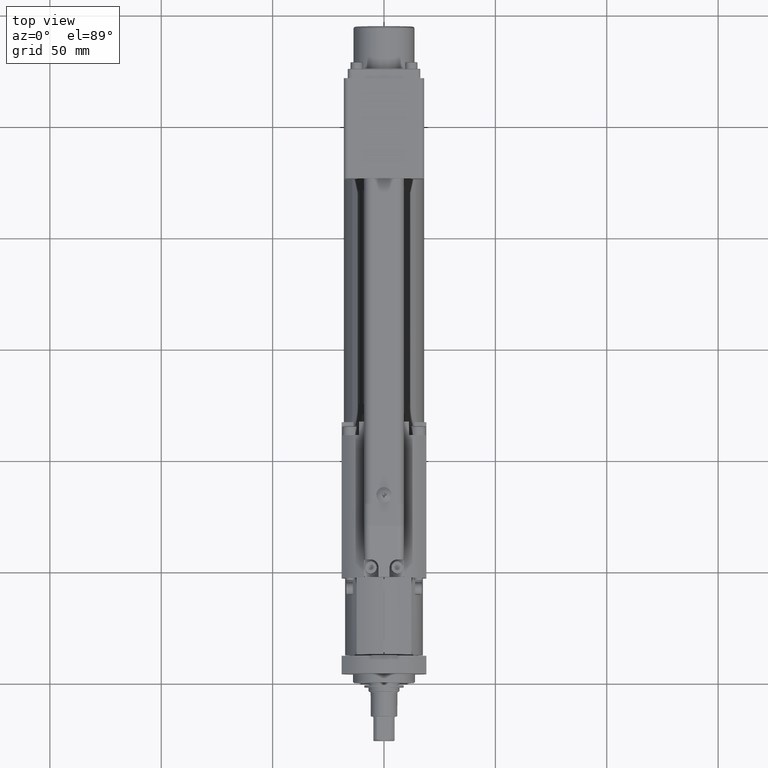
[diagram: clean part render]
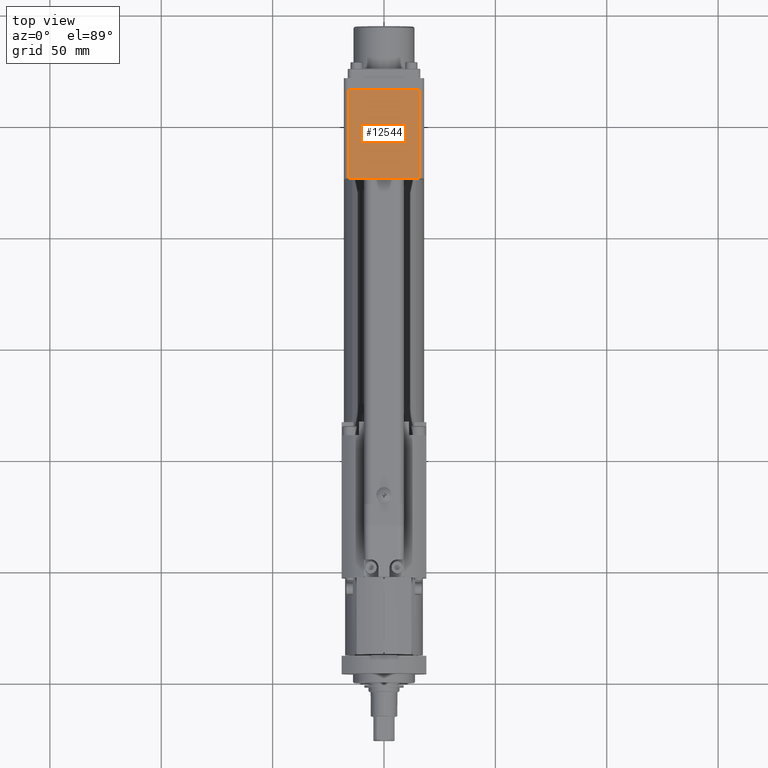
[diagram: same view with one face highlighted and labeled with its STEP entity id]
A machine part, top view. The second image highlights one B-rep face of the part: STEP entity #12544.
In plain terms, the highlighted planar face has unit normal (0, 0, 1).
Its self-contained STEP definition (entity closure, byte-faithful):
#1578=FACE_OUTER_BOUND('',#2363,.T.);
#2363=EDGE_LOOP('',(#10036,#10037,#10038,#10039));
#2824=LINE('',#18702,#3858);
#3419=LINE('',#20653,#4453);
#3420=LINE('',#20657,#4454);
#3421=LINE('',#20658,#4455);
#3858=VECTOR('',#14931,10.);
#4453=VECTOR('',#16672,10.);
#4454=VECTOR('',#16677,10.);
#4455=VECTOR('',#16678,10.);
#5022=VERTEX_POINT('',#18699);
#5023=VERTEX_POINT('',#18701);
#5543=VERTEX_POINT('',#20652);
#5544=VERTEX_POINT('',#20656);
#6246=EDGE_CURVE('',#5022,#5023,#2824,.T.);
#7114=EDGE_CURVE('',#5023,#5543,#3419,.T.);
#7116=EDGE_CURVE('',#5022,#5544,#3420,.T.);
#7117=EDGE_CURVE('',#5543,#5544,#3421,.T.);
#10036=ORIENTED_EDGE('',*,*,#6246,.F.);
#10037=ORIENTED_EDGE('',*,*,#7116,.T.);
#10038=ORIENTED_EDGE('',*,*,#7117,.F.);
#10039=ORIENTED_EDGE('',*,*,#7114,.F.);
#11237=PLANE('',#13670);
#12544=ADVANCED_FACE('',(#1578),#11237,.T.);
#13670=AXIS2_PLACEMENT_3D('',#20655,#16675,#16676);
#14931=DIRECTION('',(-1.,4.10196026886766E-16,4.16333634250589E-17));
#16672=DIRECTION('',(4.10196026886766E-16,1.,-2.80661733741623E-17));
#16675=DIRECTION('center_axis',(4.1633363425059E-17,2.80661733741623E-17,
1.));
#16676=DIRECTION('ref_axis',(1.,-4.10196026886766E-16,-4.16333634250589E-17));
#16677=DIRECTION('',(4.10196026886766E-16,1.,-2.80661733741623E-17));
#16678=DIRECTION('',(1.,-4.10196026886766E-16,-4.16333634250589E-17));
#18699=CARTESIAN_POINT('',(16.000000000091,226.,35.9999999993072));
#18701=CARTESIAN_POINT('',(-15.9999999998962,226.,35.9999999993072));
#18702=CARTESIAN_POINT('',(16.000000000091,226.,35.9999999993072));
#20652=CARTESIAN_POINT('',(-15.9999999998962,266.,35.9999999993072));
#20653=CARTESIAN_POINT('',(-15.9999999998962,226.,35.9999999993072));
#20655=CARTESIAN_POINT('Origin',(-15.9999999998962,226.,35.9999999993072));
#20656=CARTESIAN_POINT('',(16.0000000000911,266.,35.9999999993072));
#20657=CARTESIAN_POINT('',(16.000000000091,226.,35.9999999993072));
#20658=CARTESIAN_POINT('',(16.0000000000911,266.,35.9999999993072));